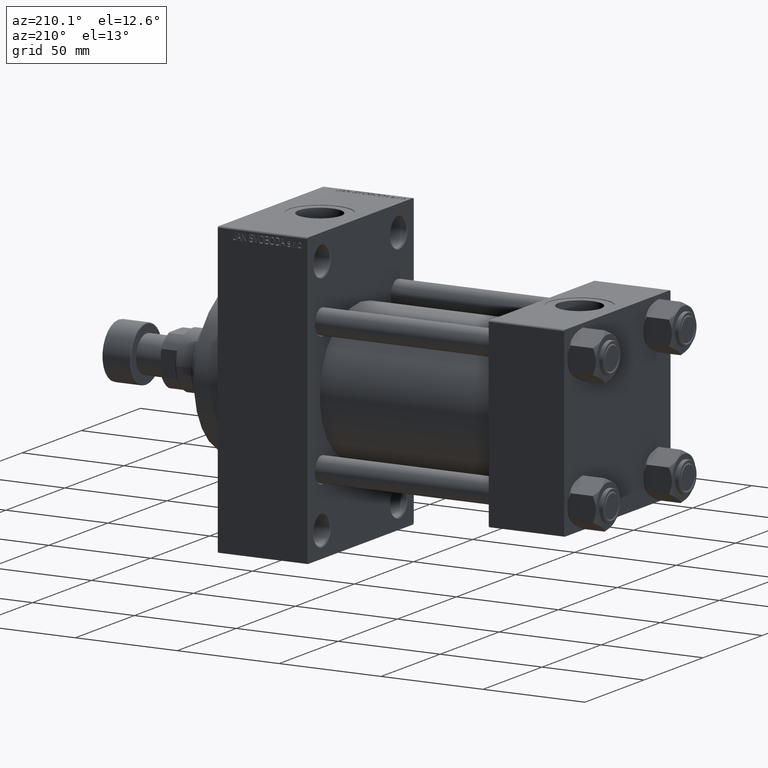
[diagram: clean part render]
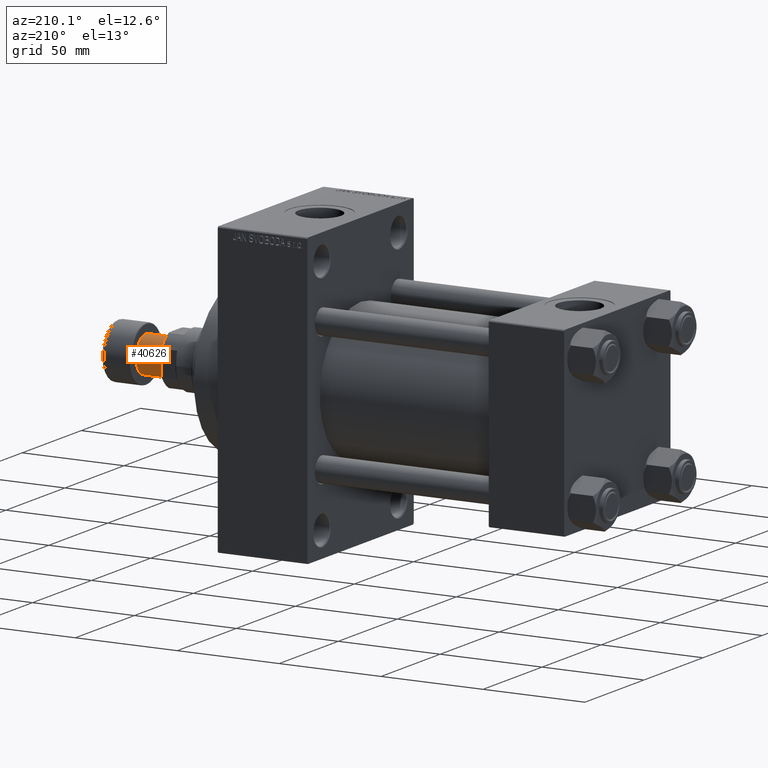
[diagram: same view with one face highlighted and labeled with its STEP entity id]
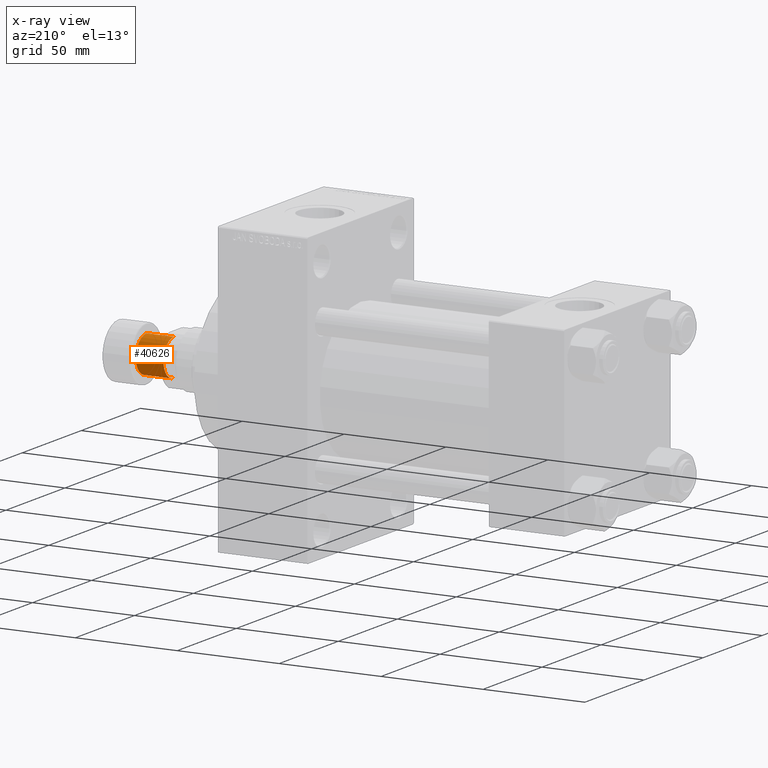
[diagram: x-ray of the same camera — body ghosted, the highlighted face saturated]
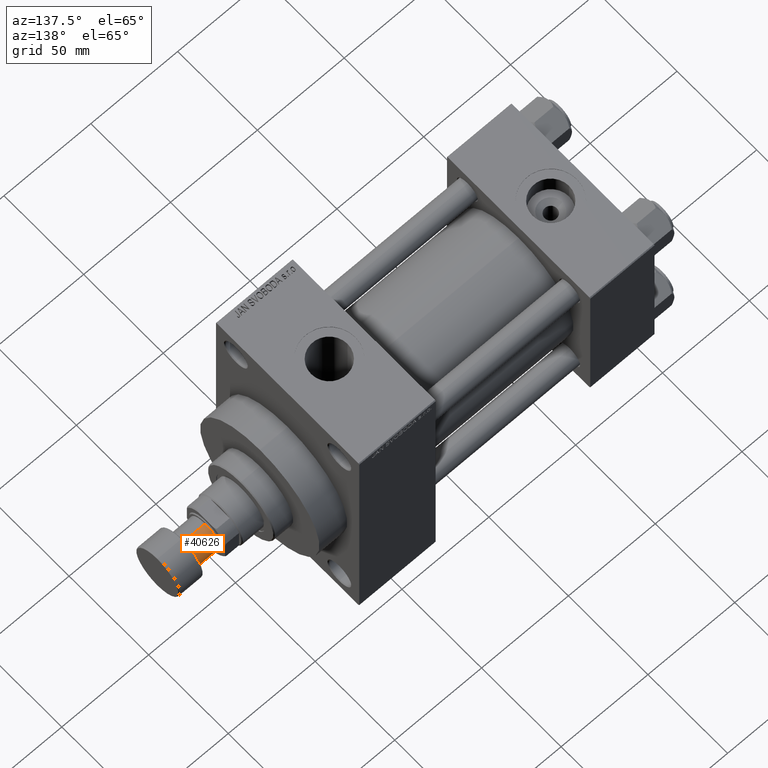
[diagram: same view with one face highlighted and labeled with its STEP entity id]
A machine part, auxiliary view. The second image highlights one B-rep face of the part: STEP entity #40626.
The next image is the same camera in x-ray: the body ghosted, the highlighted face saturated — about 0% of this face is hidden behind the body in this view.
A second angle (auxiliary view) of the same face is appended — the face is thin or edge-on in the first view.
In plain terms, the highlighted cylindrical surface (edge-blend (fillet) strip) has radius 9 mm, axis along (1, 0, 0).
Its self-contained STEP definition (entity closure, byte-faithful):
#511 = CARTESIAN_POINT ( 'NONE',  ( 9.000000000000000000, 0.000000000000000000, -14.00000000000000000 ) ) ;
#512 = DIRECTION ( 'NONE',  ( 0.000000000000000000, 0.000000000000000000, -1.000000000000000000 ) ) ;
#532 = EDGE_CURVE ( 'NONE', #15653, #6841, #5934, .T. ) ;
#1669 = DIRECTION ( 'NONE',  ( -1.000000000000000000, 0.000000000000000000, 0.000000000000000000 ) ) ;
#5934 = CIRCLE ( 'NONE', #35959, 9.000000000000000000 ) ;
#6841 = VERTEX_POINT ( 'NONE', #12387 ) ;
#12387 = CARTESIAN_POINT ( 'NONE',  ( 9.000000000000000000, 0.000000000000000000, -27.50000000000000000 ) ) ;
#12400 = EDGE_CURVE ( 'NONE', #20792, #20549, #20859, .T. ) ;
#13935 = AXIS2_PLACEMENT_3D ( 'NONE', #44162, #512, #40541 ) ;
#15653 = VERTEX_POINT ( 'NONE', #42110 ) ;
#18176 = ORIENTED_EDGE ( 'NONE', *, *, #532, .F. ) ;
#19149 = CARTESIAN_POINT ( 'NONE',  ( 9.000000000000000000, 0.000000000000000000, -27.50000000000000000 ) ) ;
#20549 = VERTEX_POINT ( 'NONE', #511 ) ;
#20731 = EDGE_LOOP ( 'NONE', ( #18176, #41081, #45452, #41789 ) ) ;
#20792 = VERTEX_POINT ( 'NONE', #34193 ) ;
#20859 = CIRCLE ( 'NONE', #13935, 9.000000000000000000 ) ;
#21744 = AXIS2_PLACEMENT_3D ( 'NONE', #26223, #40454, #22619 ) ;
#22619 = DIRECTION ( 'NONE',  ( 1.000000000000000000, 0.000000000000000000, 0.000000000000000000 ) ) ;
#25803 = CARTESIAN_POINT ( 'NONE',  ( -9.000000000000000000, 1.102182119232617714E-15, -27.50000000000000000 ) ) ;
#26223 = CARTESIAN_POINT ( 'NONE',  ( 0.000000000000000000, 0.000000000000000000, -27.50000000000000000 ) ) ;
#26766 = CARTESIAN_POINT ( 'NONE',  ( 0.000000000000000000, 0.000000000000000000, -27.50000000000000000 ) ) ;
#28878 = EDGE_CURVE ( 'NONE', #6841, #20549, #37937, .T. ) ;
#29345 = CYLINDRICAL_SURFACE ( 'NONE', #21744, 9.000000000000000000 ) ;
#32771 = LINE ( 'NONE', #25803, #42578 ) ;
#34071 = DIRECTION ( 'NONE',  ( -0.000000000000000000, -0.000000000000000000, 1.000000000000000000 ) ) ;
#34193 = CARTESIAN_POINT ( 'NONE',  ( -9.000000000000000000, 1.102182119232617714E-15, -14.00000000000000000 ) ) ;
#34697 = DIRECTION ( 'NONE',  ( 0.000000000000000000, 0.000000000000000000, -1.000000000000000000 ) ) ;
#35959 = AXIS2_PLACEMENT_3D ( 'NONE', #26766, #34697, #1669 ) ;
#37620 = VECTOR ( 'NONE', #34071, 1000.000000000000000 ) ;
#37937 = LINE ( 'NONE', #19149, #37620 ) ;
#40454 = DIRECTION ( 'NONE',  ( -0.000000000000000000, -0.000000000000000000, 1.000000000000000000 ) ) ;
#40541 = DIRECTION ( 'NONE',  ( -1.000000000000000000, 0.000000000000000000, 0.000000000000000000 ) ) ;
#40626 = ADVANCED_FACE ( 'NONE', ( #40919 ), #29345, .T. ) ;
#40919 = FACE_OUTER_BOUND ( 'NONE', #20731, .T. ) ;
#41081 = ORIENTED_EDGE ( 'NONE', *, *, #47150, .T. ) ;
#41789 = ORIENTED_EDGE ( 'NONE', *, *, #28878, .F. ) ;
#42110 = CARTESIAN_POINT ( 'NONE',  ( -9.000000000000000000, 1.102182119232617714E-15, -27.50000000000000000 ) ) ;
#42578 = VECTOR ( 'NONE', #43618, 1000.000000000000000 ) ;
#43618 = DIRECTION ( 'NONE',  ( -0.000000000000000000, -0.000000000000000000, 1.000000000000000000 ) ) ;
#44162 = CARTESIAN_POINT ( 'NONE',  ( 0.000000000000000000, 0.000000000000000000, -14.00000000000000000 ) ) ;
#45452 = ORIENTED_EDGE ( 'NONE', *, *, #12400, .T. ) ;
#47150 = EDGE_CURVE ( 'NONE', #15653, #20792, #32771, .T. ) ;